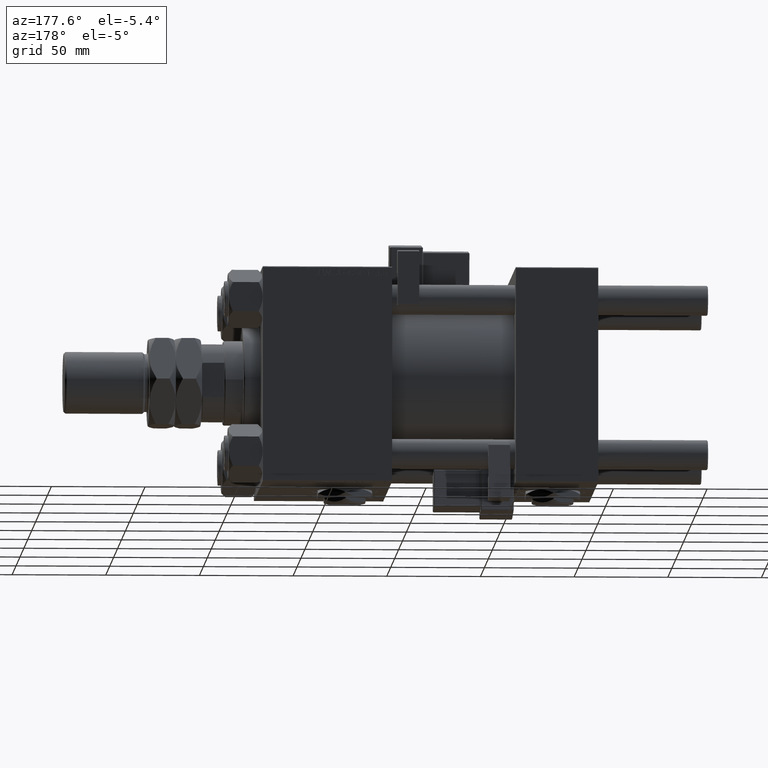
[diagram: clean part render]
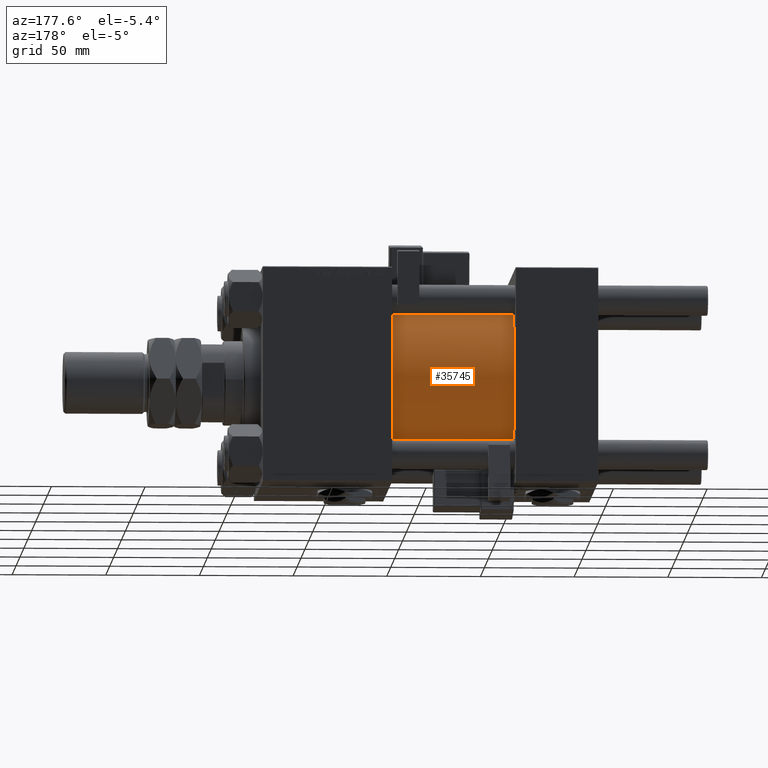
[diagram: same view with one face highlighted and labeled with its STEP entity id]
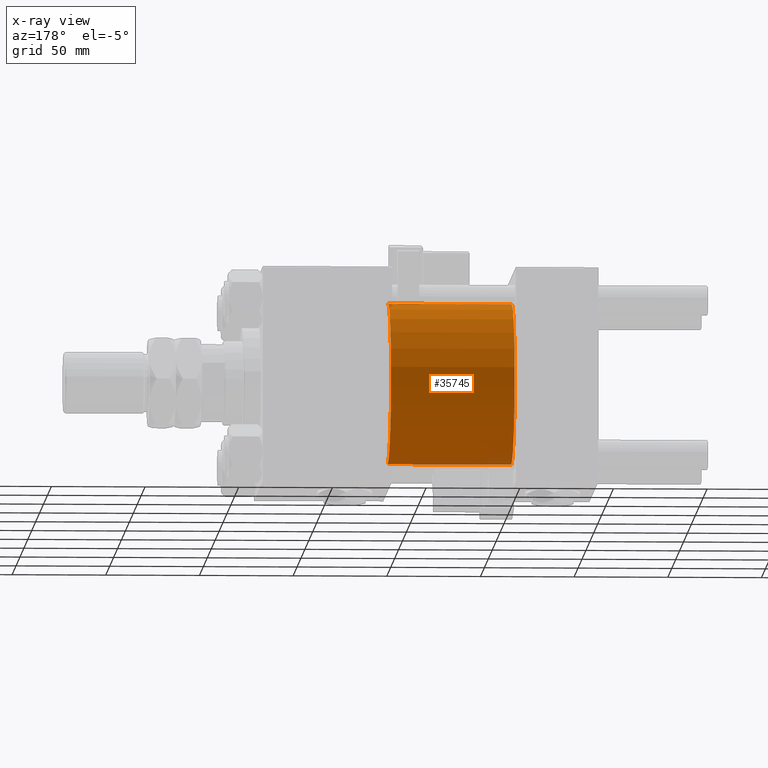
[diagram: x-ray of the same camera — body ghosted, the highlighted face saturated]
A machine part, auxiliary view. The second image highlights one B-rep face of the part: STEP entity #35745.
The next image is the same camera in x-ray: the body ghosted, the highlighted face saturated — about 2% of this face is hidden behind the body in this view.
In plain terms, the highlighted cylindrical surface (partial cylindrical patch) has radius 43 mm, axis along (-1, -0, -0).
Its self-contained STEP definition (entity closure, byte-faithful):
#3421 = DIRECTION ( 'NONE',  ( -1.000000000000000000, -0.000000000000000000, -0.000000000000000000 ) ) ;
#9002 = EDGE_CURVE ( 'NONE', #34871, #34037, #37629, .T. ) ;
#9756 = VERTEX_POINT ( 'NONE', #18173 ) ;
#11403 = CARTESIAN_POINT ( 'NONE',  ( 110.0000000000000000, 0.000000000000000000, 0.000000000000000000 ) ) ;
#11962 = FACE_OUTER_BOUND ( 'NONE', #30782, .T. ) ;
#12551 = DIRECTION ( 'NONE',  ( 0.000000000000000000, 0.000000000000000000, 1.000000000000000000 ) ) ;
#14650 = ORIENTED_EDGE ( 'NONE', *, *, #21287, .F. ) ;
#16211 = AXIS2_PLACEMENT_3D ( 'NONE', #11403, #3421, #12551 ) ;
#18173 = CARTESIAN_POINT ( 'NONE',  ( 44.00000000000000000, 0.000000000000000000, 43.00000000000000000 ) ) ;
#21287 = EDGE_CURVE ( 'NONE', #34037, #9756, #44688, .T. ) ;
#23785 = AXIS2_PLACEMENT_3D ( 'NONE', #39193, #26419, #51690 ) ;
#24359 = CARTESIAN_POINT ( 'NONE',  ( 44.00000000000000000, 5.265981236333618470E-15, -43.00000000000000000 ) ) ;
#24360 = VECTOR ( 'NONE', #40980, 1000.000000000000000 ) ;
#24668 = CIRCLE ( 'NONE', #23785, 43.00000000000000000 ) ;
#26419 = DIRECTION ( 'NONE',  ( 1.000000000000000000, -0.000000000000000000, 0.000000000000000000 ) ) ;
#30334 = DIRECTION ( 'NONE',  ( -1.000000000000000000, -0.000000000000000000, -0.000000000000000000 ) ) ;
#30782 = EDGE_LOOP ( 'NONE', ( #34286, #40602, #35954, #14650 ) ) ;
#32203 = AXIS2_PLACEMENT_3D ( 'NONE', #55485, #38192, #51245 ) ;
#34037 = VERTEX_POINT ( 'NONE', #44762 ) ;
#34286 = ORIENTED_EDGE ( 'NONE', *, *, #9002, .F. ) ;
#34871 = VERTEX_POINT ( 'NONE', #42819 ) ;
#35745 = ADVANCED_FACE ( 'NONE', ( #11962 ), #38372, .T. ) ;
#35954 = ORIENTED_EDGE ( 'NONE', *, *, #46498, .T. ) ;
#37629 = CIRCLE ( 'NONE', #32203, 43.00000000000000000 ) ;
#38192 = DIRECTION ( 'NONE',  ( 1.000000000000000000, 0.000000000000000000, 0.000000000000000000 ) ) ;
#38372 = CYLINDRICAL_SURFACE ( 'NONE', #16211, 43.00000000000000000 ) ;
#38852 = CARTESIAN_POINT ( 'NONE',  ( 110.0000000000000000, 5.265981236333618470E-15, -43.00000000000000000 ) ) ;
#39193 = CARTESIAN_POINT ( 'NONE',  ( 44.00000000000000000, 0.000000000000000000, 0.000000000000000000 ) ) ;
#40602 = ORIENTED_EDGE ( 'NONE', *, *, #52021, .T. ) ;
#40980 = DIRECTION ( 'NONE',  ( -1.000000000000000000, -0.000000000000000000, -0.000000000000000000 ) ) ;
#42819 = CARTESIAN_POINT ( 'NONE',  ( 110.0000000000000000, 5.265981236333618470E-15, -43.00000000000000000 ) ) ;
#43663 = LINE ( 'NONE', #38852, #48158 ) ;
#44309 = VERTEX_POINT ( 'NONE', #24359 ) ;
#44688 = LINE ( 'NONE', #50045, #24360 ) ;
#44762 = CARTESIAN_POINT ( 'NONE',  ( 110.0000000000000000, 0.000000000000000000, 43.00000000000000000 ) ) ;
#46498 = EDGE_CURVE ( 'NONE', #44309, #9756, #24668, .T. ) ;
#48158 = VECTOR ( 'NONE', #30334, 1000.000000000000000 ) ;
#50045 = CARTESIAN_POINT ( 'NONE',  ( 110.0000000000000000, 0.000000000000000000, 43.00000000000000000 ) ) ;
#51245 = DIRECTION ( 'NONE',  ( 0.000000000000000000, 0.000000000000000000, -1.000000000000000000 ) ) ;
#51690 = DIRECTION ( 'NONE',  ( 0.000000000000000000, 0.000000000000000000, 1.000000000000000000 ) ) ;
#52021 = EDGE_CURVE ( 'NONE', #34871, #44309, #43663, .T. ) ;
#55485 = CARTESIAN_POINT ( 'NONE',  ( 110.0000000000000000, 0.000000000000000000, 0.000000000000000000 ) ) ;